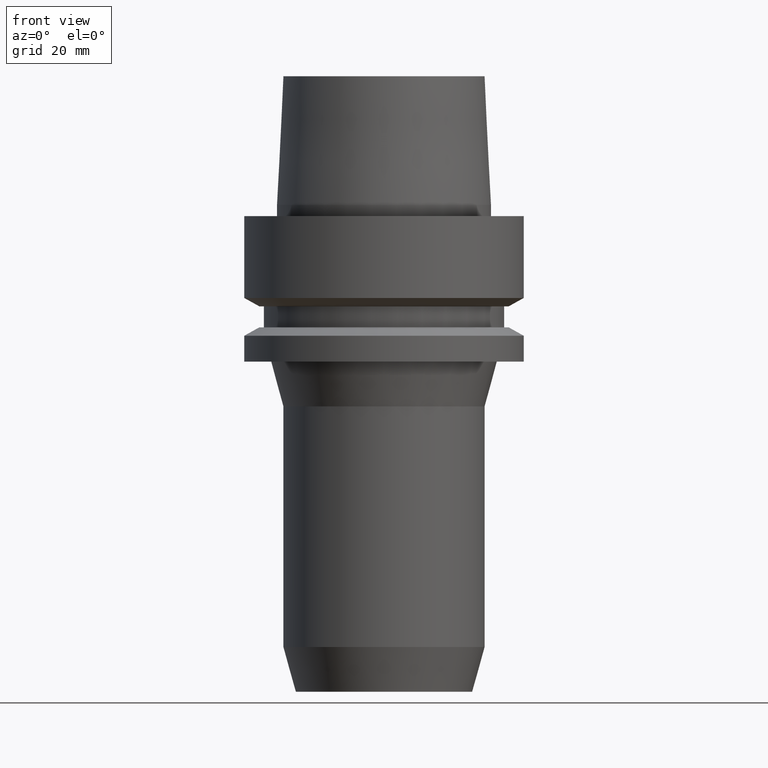
[diagram: clean part render]
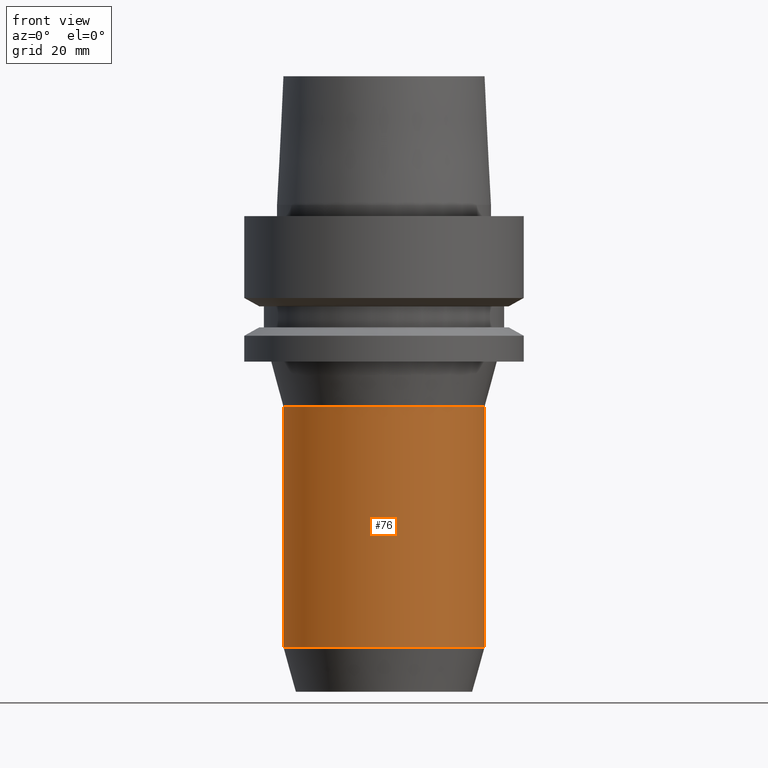
[diagram: same view with one face highlighted and labeled with its STEP entity id]
A machine part, front view. The second image highlights one B-rep face of the part: STEP entity #76.
In plain terms, the highlighted cylindrical surface (bore or boss wall) has radius 18 mm, axis along (-0, -0, 1).
Its self-contained STEP definition (entity closure, byte-faithful):
#76=ADVANCED_FACE('',(#94,#95),#96,.T.);
#94=FACE_BOUND('',#140,.T.);
#95=FACE_BOUND('',#141,.T.);
#96=CYLINDRICAL_SURFACE('',#142,18.0);
#140=EDGE_LOOP('',(#188));
#141=EDGE_LOOP('',(#189));
#142=AXIS2_PLACEMENT_3D('',#190,#191,#192);
#188=ORIENTED_EDGE('',*,*,#263,.F.);
#189=ORIENTED_EDGE('',*,*,#264,.T.);
#190=CARTESIAN_POINT('',(3.39839486682197E-015,6.79678973364393E-015,-55.49999998674));
#191=DIRECTION('',(-6.12323399573677E-017,-1.22464679914735E-016,1.0));
#192=DIRECTION('',(-1.23259516440783E-032,1.0,1.22464679914735E-016));
#263=EDGE_CURVE('',#279,#279,#280,.T.);
#264=EDGE_CURVE('',#281,#281,#282,.T.);
#279=VERTEX_POINT('',#309);
#280=CIRCLE('',#310,18.0);
#281=VERTEX_POINT('',#311);
#282=CIRCLE('',#312,18.0);
#309=CARTESIAN_POINT('',(4.71489017611181E-015,18.0,-76.9999999901114));
#310=AXIS2_PLACEMENT_3D('',#340,#341,#342);
#311=CARTESIAN_POINT('',(2.08189955753213E-015,18.0,-33.9999999833687));
#312=AXIS2_PLACEMENT_3D('',#343,#344,#345);
#340=CARTESIAN_POINT('',(4.71489017611181E-015,9.42978035222361E-015,-76.9999999901114));
#341=DIRECTION('',(6.12323399573677E-017,1.22464679914735E-016,-1.0));
#342=DIRECTION('',(-1.23259516440783E-032,1.0,1.22464679914735E-016));
#343=CARTESIAN_POINT('',(2.08189955753213E-015,4.16379911506425E-015,-33.9999999833687));
#344=DIRECTION('',(6.12323399573677E-017,1.22464679914735E-016,-1.0));
#345=DIRECTION('',(-1.23259516440783E-032,1.0,1.22464679914735E-016));